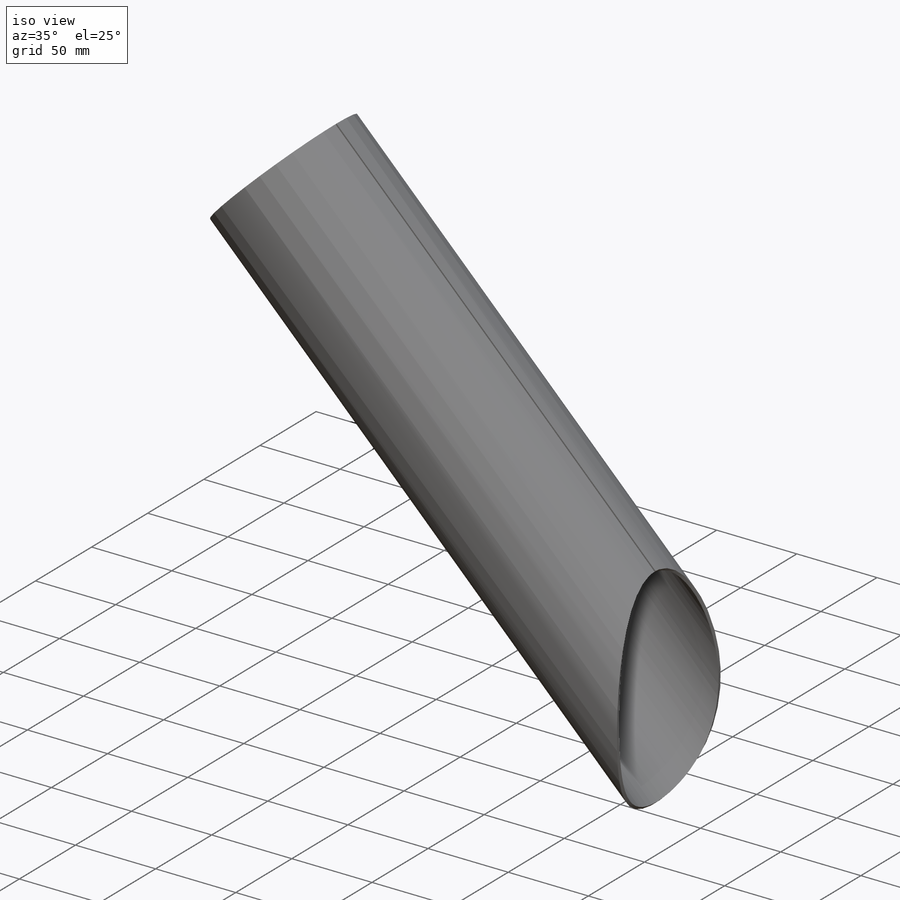
[diagram: iso view]
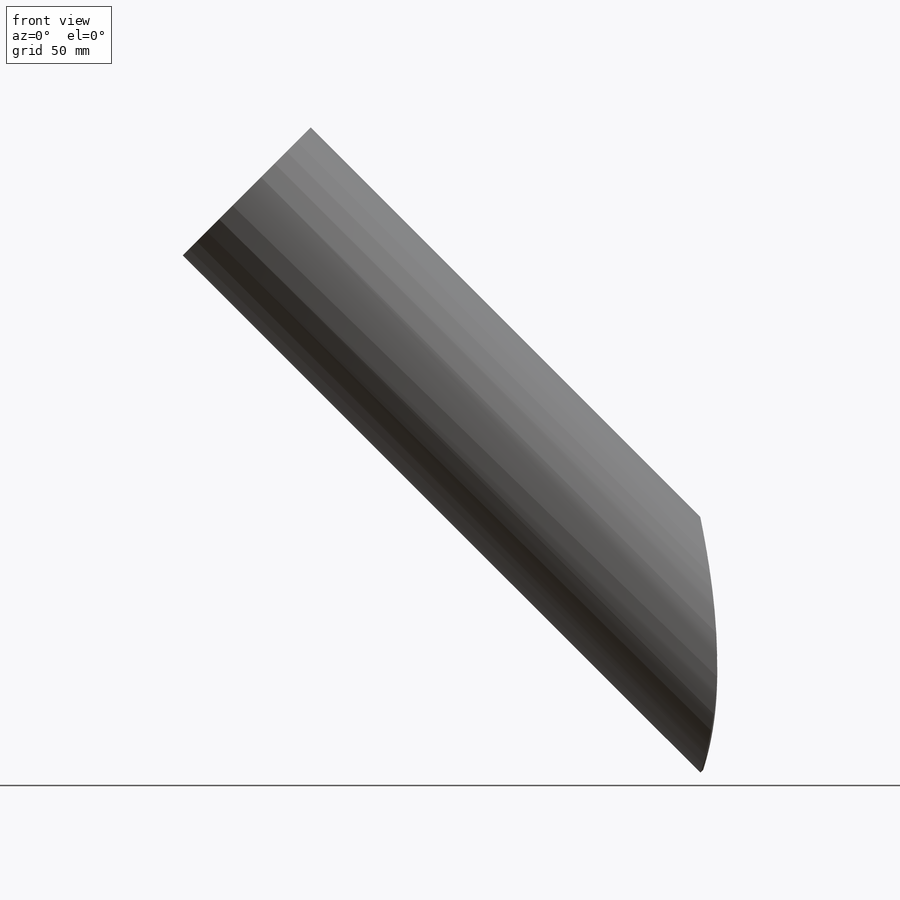
[diagram: front view]
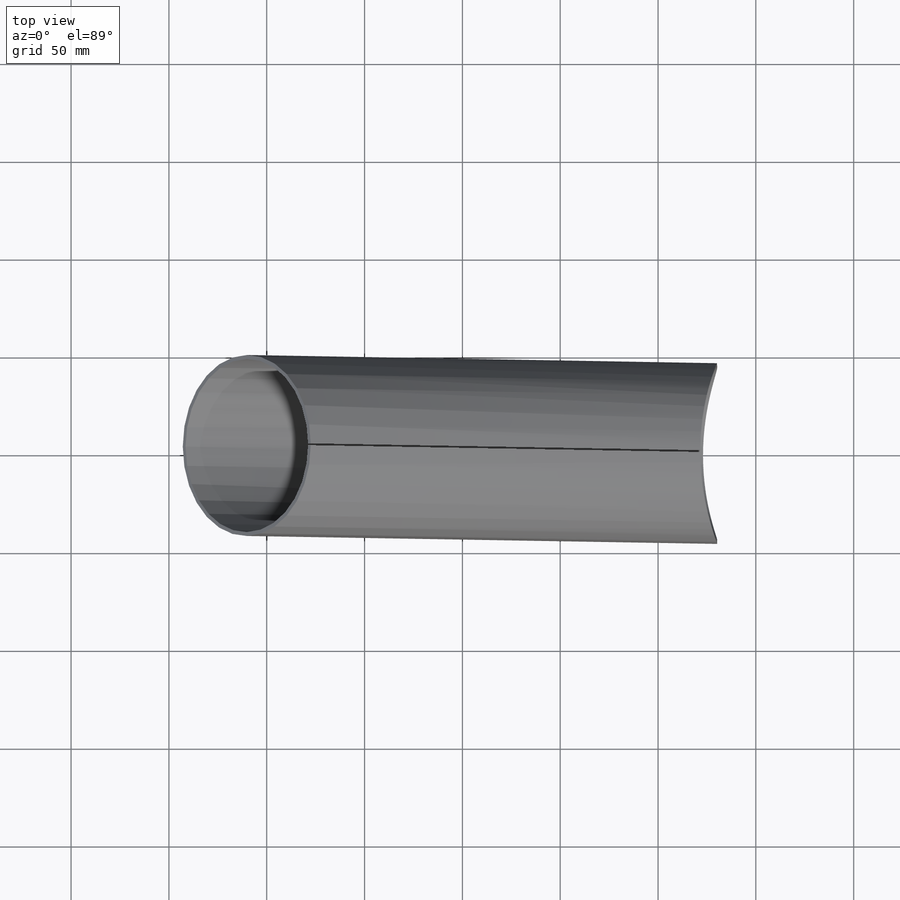
[diagram: top view]
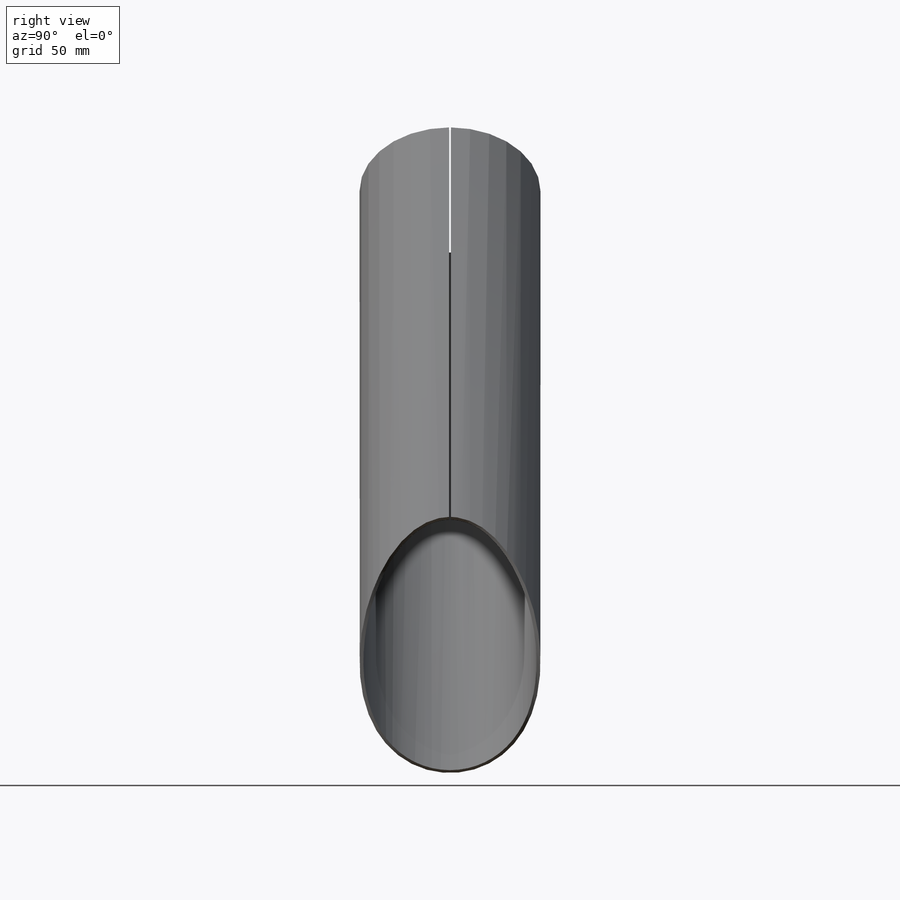
[diagram: right view]
SOLIDWORKS PART (.sldprt)
format: sldprt  version: not decoded by parser v0  size: 267,776 bytes
history: native  units: mm
features: sketch x9, plane x6, extrude x2, material x1, cut_extrude x1, delete_body x1, sheet_metal_op x1 + 2 further entries (+9 scaffold rows collapsed)
feature tree (32):
  scaffold x9  (default folders/planes/origin — collapsed)
  material  "Matériau <non spécifié>"
  plane  "Plan de face"
  plane  "Plan de dessus"
  plane  "Plan de droite"
  sketch  "Esquisse1"  dims[D1=~256.84022mm]
  extrude  "Boss.-Extru.1"  Depth=511.3mm
  plane  "Plan1"  Offset=477.824641mm
  plane  "Plan2"  Offset=468.243813mm
  plane  "Plan3"
  sketch  "Esquisse2"  dims[D1=2.0mm]
  extrude  "Boss.-Extru.2"  [1 undecoded]
  sketch  "Esquisse3"  dims[D1=1.0mm D2=~12.118281mm]
  cut_extrude  "Enlèv. mat.-Extru.1"  [1 undecoded]
  delete_body  "Corps-Effacer/suppr1"
  sketch  "Esquisse-Angle1"  dims[c1.D1=~44.259825mm c1.D4=~358.761411deg c1.D5=1.0 c1.D8=1.0mm c1.D9=1.0mm c2.D1=0.0mm]
  sketch  "Esquisse-Plate1"  dims[D1=0.0mm]
  sketch  "Lignes de pliage1"
  sketch  "Cube de visualisation1"
  sheet_metal_op  "Tôlerie4"
  "Etat déplié4"
  sketch  "Lignes de pliage2"
  sketch  "Cube de visualisation2"
  "Transformation de l'esquisse1"
decode coverage: 6 of 14 modeling features carry decoded parameters; 2 rows unclassified (native names shown)
note: ~ marks probable driven/reference dimensions
note: 2 parameter values undecoded
note: suppression state not decoded; provenance and decode notes live in map.json
